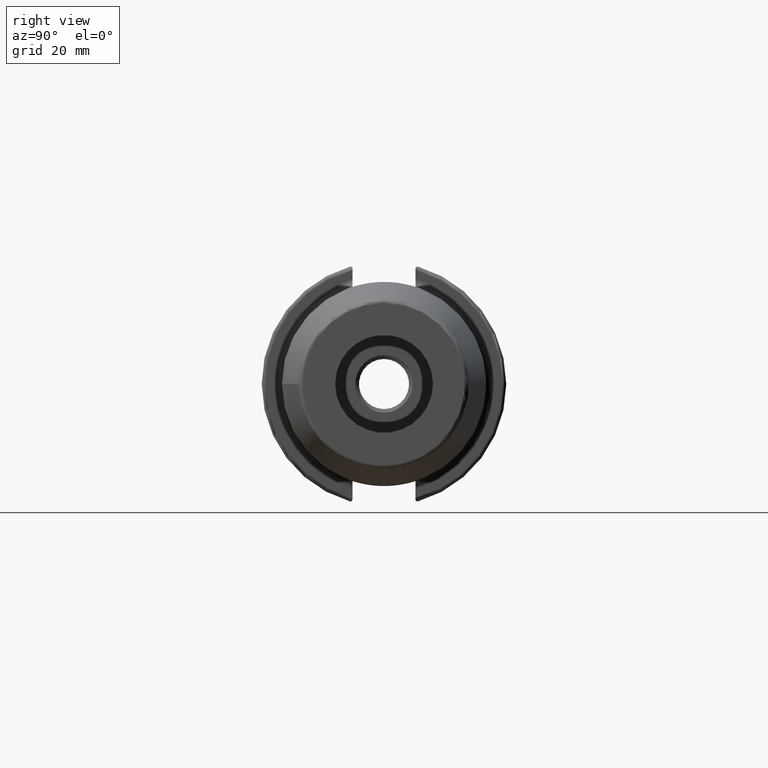
[diagram: clean part render]
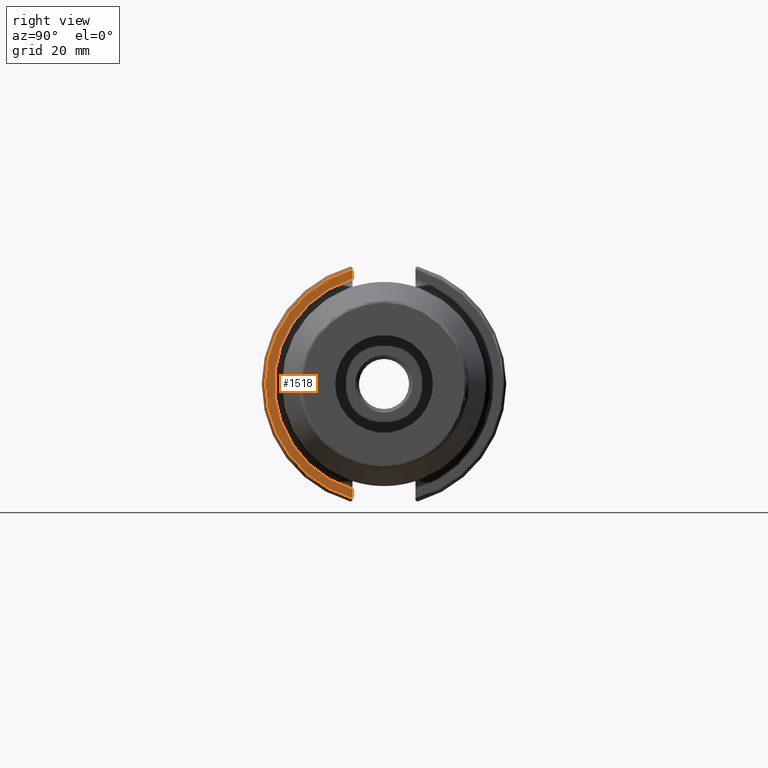
[diagram: same view with one face highlighted and labeled with its STEP entity id]
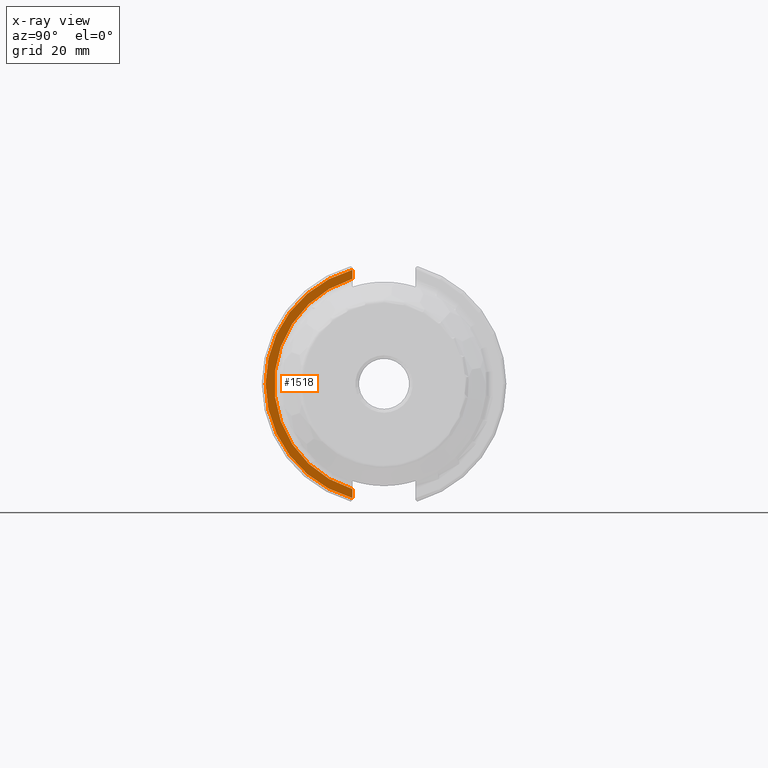
[diagram: x-ray of the same camera — body ghosted, the highlighted face saturated]
A machine part, right view. The second image highlights one B-rep face of the part: STEP entity #1518.
The next image is the same camera in x-ray: the body ghosted, the highlighted face saturated — about 0% of this face is hidden behind the body in this view.
In plain terms, the highlighted planar face has unit normal (1, 0, 0).
Its self-contained STEP definition (entity closure, byte-faithful):
#68=PLANE('',#1650);
#136=FACE_OUTER_BOUND('',#228,.T.);
#228=EDGE_LOOP('',(#1076,#1077,#1078,#1079));
#314=CIRCLE('',#1620,28.5);
#331=CIRCLE('',#1651,30.75);
#400=LINE('',#2511,#486);
#401=LINE('',#2514,#487);
#486=VECTOR('',#1888,10.);
#487=VECTOR('',#1891,10.);
#612=VERTEX_POINT('',#2320);
#613=VERTEX_POINT('',#2329);
#639=VERTEX_POINT('',#2510);
#640=VERTEX_POINT('',#2512);
#773=EDGE_CURVE('',#612,#613,#314,.T.);
#810=EDGE_CURVE('',#612,#639,#400,.T.);
#811=EDGE_CURVE('',#640,#639,#331,.T.);
#812=EDGE_CURVE('',#640,#613,#401,.T.);
#1076=ORIENTED_EDGE('',*,*,#773,.F.);
#1077=ORIENTED_EDGE('',*,*,#810,.T.);
#1078=ORIENTED_EDGE('',*,*,#811,.F.);
#1079=ORIENTED_EDGE('',*,*,#812,.T.);
#1518=ADVANCED_FACE('',(#136),#68,.T.);
#1620=AXIS2_PLACEMENT_3D('',#2330,#1816,#1817);
#1650=AXIS2_PLACEMENT_3D('',#2509,#1886,#1887);
#1651=AXIS2_PLACEMENT_3D('',#2513,#1889,#1890);
#1816=DIRECTION('center_axis',(1.,0.,0.));
#1817=DIRECTION('ref_axis',(0.,-0.999990043367962,0.00446241693951007));
#1886=DIRECTION('center_axis',(1.,0.,0.));
#1887=DIRECTION('ref_axis',(0.,0.,-1.));
#1888=DIRECTION('',(0.,0.,1.));
#1889=DIRECTION('center_axis',(-1.,0.,0.));
#1890=DIRECTION('ref_axis',(0.,-1.,1.60812264967664E-16));
#1891=DIRECTION('',(0.,0.,1.));
#2320=CARTESIAN_POINT('',(19.05,-8.19,27.2978735435565));
#2329=CARTESIAN_POINT('',(19.05,-8.19,-27.2978735435565));
#2330=CARTESIAN_POINT('Origin',(19.05,0.,0.));
#2509=CARTESIAN_POINT('Origin',(19.05,0.,0.));
#2510=CARTESIAN_POINT('',(19.05,-8.19,29.6392712461019));
#2511=CARTESIAN_POINT('',(19.05,-8.19,12.5));
#2512=CARTESIAN_POINT('',(19.05,-8.19,-29.6392712461019));
#2513=CARTESIAN_POINT('Origin',(19.05,0.,0.));
#2514=CARTESIAN_POINT('',(19.05,-8.19,-11.3));